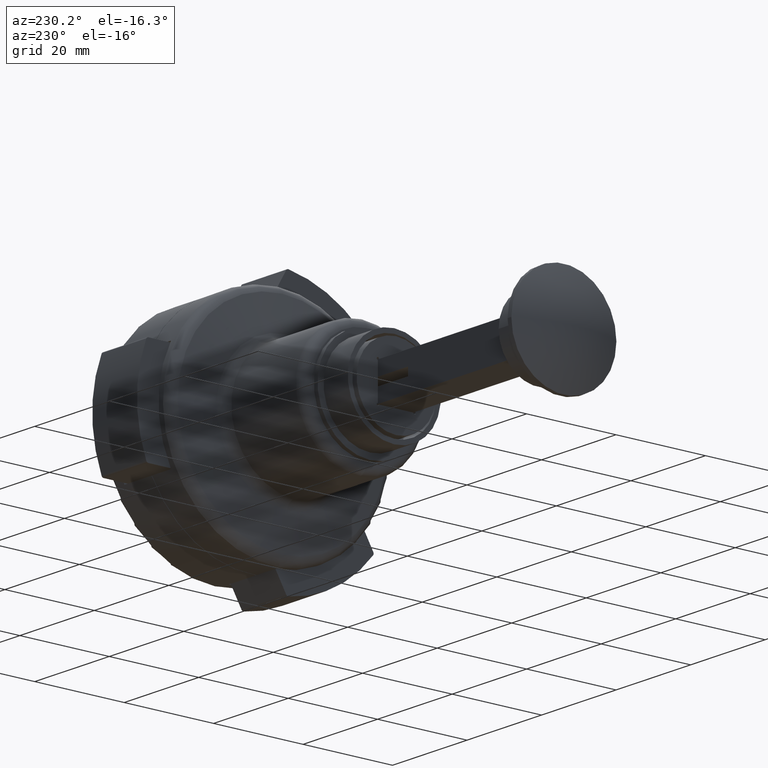
[diagram: clean part render]
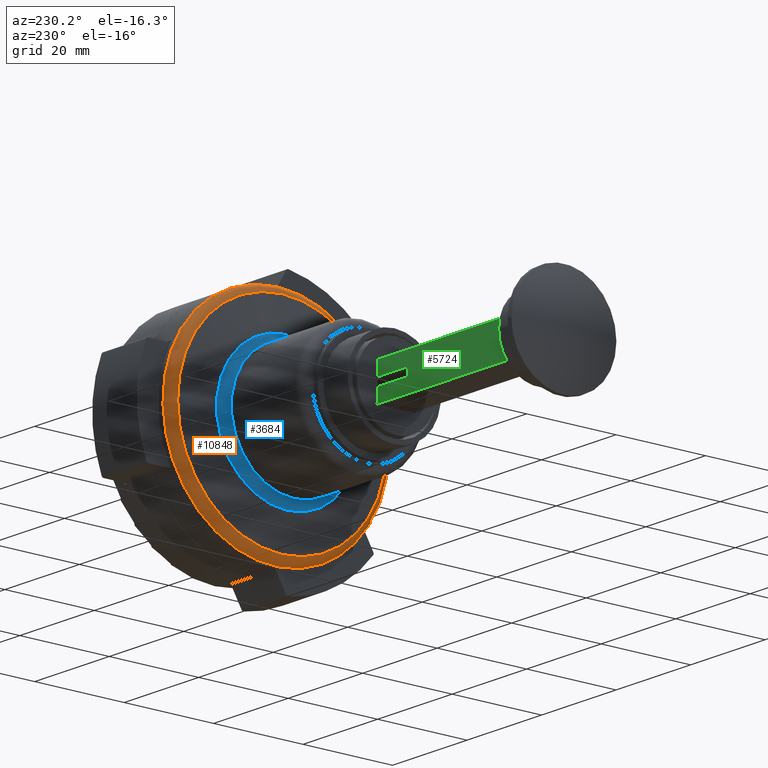
[diagram: same view with three faces highlighted in distinct colors, each labeled with its STEP entity id]
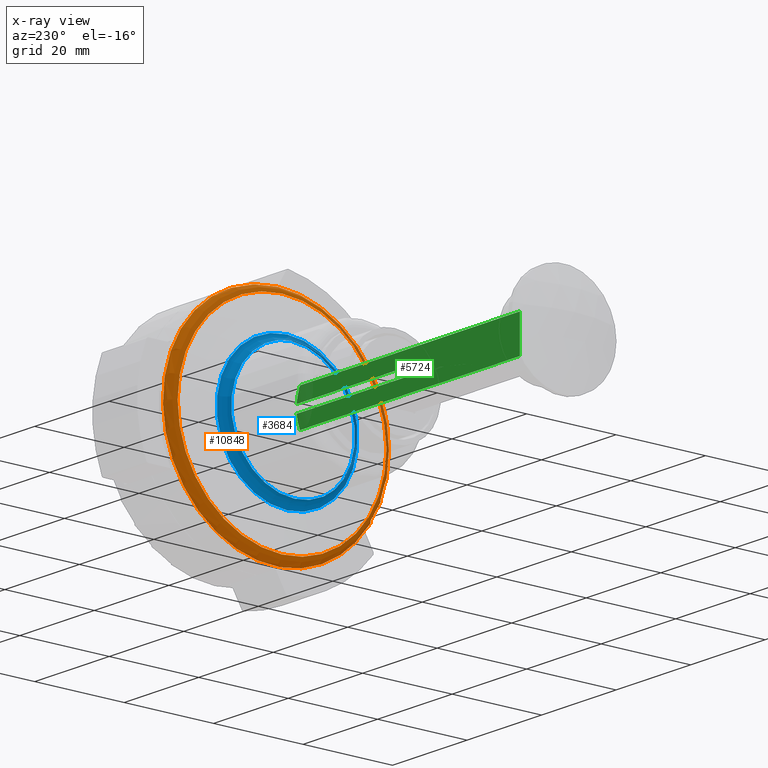
[diagram: x-ray of the same camera — body ghosted, the three highlighted faces saturated]
A machine part, auxiliary view with three faces highlighted in distinct colors.
The next image is the same camera in x-ray (body ghosted, the three faces saturated) — at least one of them is partly hidden behind the body in this view.
Their STEP definitions:

[orange] entity #10848 — the highlighted toroidal blend (fillet) surface has major radius 23 mm and minor (blend) radius 2 mm.
#45 = CIRCLE ( 'NONE', #7918, 25.00000000000015632 ) ;
#182 = ORIENTED_EDGE ( 'NONE', *, *, #4799, .F. ) ;
#861 = CARTESIAN_POINT ( 'NONE',  ( -25.00000000000015632, -9.374464004304871916E-30, -6.399836647923234700 ) ) ;
#1333 = DIRECTION ( 'NONE',  ( -1.000000000000000000, -4.057934392823881420E-31, 0.000000000000000000 ) ) ;
#2585 = EDGE_LOOP ( 'NONE', ( #182 ) ) ;
#2809 = AXIS2_PLACEMENT_3D ( 'NONE', #7335, #13039, #6083 ) ;
#2987 = DIRECTION ( 'NONE',  ( -1.000000000000000000, -4.057934392823880544E-31, -6.902532920683853297E-31 ) ) ;
#3422 = VERTEX_POINT ( 'NONE', #861 ) ;
#3764 = CARTESIAN_POINT ( 'NONE',  ( -8.011868568650901149E-29, 7.703719777548943412E-31, -6.399836647923234700 ) ) ;
#3804 = CIRCLE ( 'NONE', #2809, 23.34729635533399161 ) ;
#3945 = AXIS2_PLACEMENT_3D ( 'NONE', #14247, #10739, #2987 ) ;
#4227 = TOROIDAL_SURFACE ( 'NONE', #3945, 23.00000000000000000, 2.000000000000000888 ) ;
#4345 = EDGE_CURVE ( 'NONE', #3422, #3422, #45, .T. ) ;
#4799 = EDGE_CURVE ( 'NONE', #14304, #14304, #3804, .T. ) ;
#6083 = DIRECTION ( 'NONE',  ( -1.000000000000000000, -4.057934392823880544E-31, 0.000000000000000000 ) ) ;
#7335 = CARTESIAN_POINT ( 'NONE',  ( 0.000000000000000000, 0.000000000000000000, -8.369452153947658957 ) ) ;
#7424 = FACE_OUTER_BOUND ( 'NONE', #11920, .T. ) ;
#7918 = AXIS2_PLACEMENT_3D ( 'NONE', #3764, #11782, #1333 ) ;
#8150 = ORIENTED_EDGE ( 'NONE', *, *, #4345, .T. ) ;
#8880 = CARTESIAN_POINT ( 'NONE',  ( -23.34729635533399161, -9.474179685976143261E-30, -8.369452153947658957 ) ) ;
#10739 = DIRECTION ( 'NONE',  ( 6.902532920683853297E-31, 1.035592380457804115E-30, -1.000000000000000000 ) ) ;
#10848 = ADVANCED_FACE ( 'NONE', ( #12791, #7424 ), #4227, .T. ) ;
#11782 = DIRECTION ( 'NONE',  ( 6.902532920683853297E-31, 1.035592380457804115E-30, -1.000000000000000000 ) ) ;
#11920 = EDGE_LOOP ( 'NONE', ( #8150 ) ) ;
#12791 = FACE_OUTER_BOUND ( 'NONE', #2585, .T. ) ;
#13039 = DIRECTION ( 'NONE',  ( 6.902532920683853297E-31, 1.035592380457804115E-30, -1.000000000000000000 ) ) ;
#14247 = CARTESIAN_POINT ( 'NONE',  ( -8.011868568650901149E-29, 7.703719777548943412E-31, -6.399836647923234700 ) ) ;
#14304 = VERTEX_POINT ( 'NONE', #8880 ) ;

[blue] entity #3684 — the highlighted toroidal blend (fillet) surface has major radius 16.1 mm and minor (blend) radius 2 mm.
#580 = DIRECTION ( 'NONE',  ( -1.000000000000000000, -4.057934392823880544E-31, 0.000000000000000000 ) ) ;
#705 = ORIENTED_EDGE ( 'NONE', *, *, #3369, .F. ) ;
#727 = EDGE_LOOP ( 'NONE', ( #11047 ) ) ;
#1073 = DIRECTION ( 'NONE',  ( -1.000000000000000000, -4.057934392823881420E-31, -6.902532920683853297E-31 ) ) ;
#1413 = CARTESIAN_POINT ( 'NONE',  ( 0.000000000000000000, 0.000000000000000000, -9.708583756330172676 ) ) ;
#2653 = DIRECTION ( 'NONE',  ( 1.000000000000000000, 4.057934392823881420E-31, 0.000000000000000000 ) ) ;
#2709 = AXIS2_PLACEMENT_3D ( 'NONE', #1413, #5958, #2653 ) ;
#3213 = CARTESIAN_POINT ( 'NONE',  ( 15.75270364466625495, 6.392343789965329815E-30, -9.708583756330172676 ) ) ;
#3369 = EDGE_CURVE ( 'NONE', #5052, #5052, #8426, .T. ) ;
#3684 = ADVANCED_FACE ( 'NONE', ( #3968, #9996 ), #5726, .F. ) ;
#3968 = FACE_OUTER_BOUND ( 'NONE', #727, .T. ) ;
#4028 = DIRECTION ( 'NONE',  ( 6.902532920683853297E-31, 1.035592380457804115E-30, -1.000000000000000000 ) ) ;
#5052 = VERTEX_POINT ( 'NONE', #7670 ) ;
#5678 = VERTEX_POINT ( 'NONE', #3213 ) ;
#5726 = TOROIDAL_SURFACE ( 'NONE', #14590, 16.10000000000000142, 2.000000000000000000 ) ;
#5958 = DIRECTION ( 'NONE',  ( -6.902532920683853297E-31, -1.035592380457804115E-30, 1.000000000000000000 ) ) ;
#7670 = CARTESIAN_POINT ( 'NONE',  ( -14.10000000000009024, 5.063520194686812558E-30, -11.67819926235456940 ) ) ;
#7878 = DIRECTION ( 'NONE',  ( 6.902532920683853297E-31, 1.035592380457804115E-30, -1.000000000000000000 ) ) ;
#7940 = CARTESIAN_POINT ( 'NONE',  ( 0.000000000000000000, 1.078520768856852078E-29, -11.67819926235456940 ) ) ;
#8115 = CIRCLE ( 'NONE', #2709, 15.75270364466625495 ) ;
#8426 = CIRCLE ( 'NONE', #13367, 14.10000000000009024 ) ;
#8567 = EDGE_LOOP ( 'NONE', ( #705 ) ) ;
#9996 = FACE_OUTER_BOUND ( 'NONE', #8567, .T. ) ;
#10762 = EDGE_CURVE ( 'NONE', #5678, #5678, #8115, .T. ) ;
#11047 = ORIENTED_EDGE ( 'NONE', *, *, #10762, .F. ) ;
#13243 = CARTESIAN_POINT ( 'NONE',  ( 0.000000000000000000, 1.078520768856852078E-29, -11.67819926235456940 ) ) ;
#13367 = AXIS2_PLACEMENT_3D ( 'NONE', #13243, #4028, #580 ) ;
#14590 = AXIS2_PLACEMENT_3D ( 'NONE', #7940, #7878, #1073 ) ;

[green] entity #5724 — the highlighted planar face has unit normal (0, -1, 0).
#98 = CARTESIAN_POINT ( 'NONE',  ( -15.00000000000000000, 4.000000000000000888, -0.8750000000000001110 ) ) ;
#321 = CARTESIAN_POINT ( 'NONE',  ( 44.44032321602044533, 3.999999999999999112, 2.981996921138053036 ) ) ;
#687 = CARTESIAN_POINT ( 'NONE',  ( 45.00000000000000000, 3.999999999999999112, 4.000000000000001776 ) ) ;
#1153 = LINE ( 'NONE', #1433, #9148 ) ;
#1251 = EDGE_CURVE ( 'NONE', #6542, #8886, #4521, .T. ) ;
#1260 = DIRECTION ( 'NONE',  ( -0.000000000000000000, -0.000000000000000000, -1.000000000000000000 ) ) ;
#1433 = CARTESIAN_POINT ( 'NONE',  ( 45.00000000000000000, 3.999999999999999112, -3.999999999999999112 ) ) ;
#1587 = CARTESIAN_POINT ( 'NONE',  ( 44.94539141800778737, 4.000000000000030198, 0.8750000000000005551 ) ) ;
#1588 = ORIENTED_EDGE ( 'NONE', *, *, #3902, .F. ) ;
#1883 = CARTESIAN_POINT ( 'NONE',  ( 44.43978035802832949, 3.999999999999999112, -2.983355208092790534 ) ) ;
#1940 = CARTESIAN_POINT ( 'NONE',  ( 44.94539141800801474, 3.999999999999999112, -0.8750000000000995870 ) ) ;
#2668 = CARTESIAN_POINT ( 'NONE',  ( -15.00000000000000000, 4.000000000000001776, 4.000000000000001776 ) ) ;
#2906 = LINE ( 'NONE', #12591, #11625 ) ;
#2991 = DIRECTION ( 'NONE',  ( 0.000000000000000000, -1.000000000000000000, 0.000000000000000000 ) ) ;
#3040 = CARTESIAN_POINT ( 'NONE',  ( 44.94539141800778737, 4.000000000000030198, 0.8750000000000005551 ) ) ;
#3643 = VECTOR ( 'NONE', #5231, 1000.000000000000000 ) ;
#3849 = ORIENTED_EDGE ( 'NONE', *, *, #14660, .F. ) ;
#3902 = EDGE_CURVE ( 'NONE', #7027, #5974, #2906, .T. ) ;
#4015 = VECTOR ( 'NONE', #4225, 1000.000000000000000 ) ;
#4082 = ORIENTED_EDGE ( 'NONE', *, *, #13687, .T. ) ;
#4110 = CARTESIAN_POINT ( 'NONE',  ( 44.04341475304760678, 4.000000000000000000, -3.999999999999999112 ) ) ;
#4205 = CARTESIAN_POINT ( 'NONE',  ( -15.00000000000000000, 3.999999999999999112, -4.000000000000000888 ) ) ;
#4225 = DIRECTION ( 'NONE',  ( 1.000000000000000000, -0.000000000000000000, -0.000000000000000000 ) ) ;
#4415 = VECTOR ( 'NONE', #1260, 1000.000000000000000 ) ;
#4521 = LINE ( 'NONE', #9557, #3643 ) ;
#4830 = ORIENTED_EDGE ( 'NONE', *, *, #13568, .T. ) ;
#4891 = LINE ( 'NONE', #11046, #4015 ) ;
#5231 = DIRECTION ( 'NONE',  ( -0.000000000000000000, -0.000000000000000000, 1.000000000000000000 ) ) ;
#5381 = VERTEX_POINT ( 'NONE', #6309 ) ;
#5492 = ORIENTED_EDGE ( 'NONE', *, *, #7979, .F. ) ;
#5724 = ADVANCED_FACE ( 'NONE', ( #9458 ), #12152, .F. ) ;
#5974 = VERTEX_POINT ( 'NONE', #2668 ) ;
#6063 = ORIENTED_EDGE ( 'NONE', *, *, #7277, .F. ) ;
#6237 = DIRECTION ( 'NONE',  ( 1.000000000000000000, -0.000000000000000000, -0.000000000000000000 ) ) ;
#6309 = CARTESIAN_POINT ( 'NONE',  ( 44.04341475304760678, 4.000000000000000000, -3.999999999999999112 ) ) ;
#6398 = CARTESIAN_POINT ( 'NONE',  ( 44.75476316776835262, 3.999999999999999112, -1.942875093181795076 ) ) ;
#6531 = EDGE_LOOP ( 'NONE', ( #12056, #1588, #5492, #6063, #9669, #4082, #3849, #4830 ) ) ;
#6542 = VERTEX_POINT ( 'NONE', #8442 ) ;
#6546 = CARTESIAN_POINT ( 'NONE',  ( 44.87873634941627898, 3.999999999999999112, -1.415251060417864304 ) ) ;
#6640 = CARTESIAN_POINT ( 'NONE',  ( 15.00000000000000000, 4.000000000000000888, 0.8750000000000005551 ) ) ;
#6827 = DIRECTION ( 'NONE',  ( -1.000000000000000000, -0.000000000000000000, -0.000000000000000000 ) ) ;
#7027 = VERTEX_POINT ( 'NONE', #12417 ) ;
#7142 = CARTESIAN_POINT ( 'NONE',  ( 44.75593809106885601, 3.999999999999999112, 1.938556675108114247 ) ) ;
#7277 = EDGE_CURVE ( 'NONE', #8886, #9516, #14459, .T. ) ;
#7343 = CARTESIAN_POINT ( 'NONE',  ( 44.24904486352164668, 3.999999999999999112, 3.496311153586488363 ) ) ;
#7593 = DIRECTION ( 'NONE',  ( 0.000000000000000000, -0.000000000000000000, -1.000000000000000000 ) ) ;
#7979 = EDGE_CURVE ( 'NONE', #9516, #7027, #12892, .T. ) ;
#8442 = CARTESIAN_POINT ( 'NONE',  ( 15.00000000000000000, 4.000000000000000888, -0.8749999999999994449 ) ) ;
#8654 = DIRECTION ( 'NONE',  ( -1.000000000000000000, -0.000000000000000000, -0.000000000000000000 ) ) ;
#8886 = VERTEX_POINT ( 'NONE', #12357 ) ;
#9148 = VECTOR ( 'NONE', #8654, 1000.000000000000000 ) ;
#9458 = FACE_OUTER_BOUND ( 'NONE', #6531, .T. ) ;
#9512 = CARTESIAN_POINT ( 'NONE',  ( 44.04341475304761389, 3.999999999999999112, 4.000000000000001776 ) ) ;
#9516 = VERTEX_POINT ( 'NONE', #3040 ) ;
#9557 = CARTESIAN_POINT ( 'NONE',  ( 15.00000000000000000, 4.000000000000000888, 0.8750000000000005551 ) ) ;
#9669 = ORIENTED_EDGE ( 'NONE', *, *, #1251, .F. ) ;
#9868 = CARTESIAN_POINT ( 'NONE',  ( 44.24904763687256093, 4.000000000000000000, -3.496304360291883739 ) ) ;
#9877 = VERTEX_POINT ( 'NONE', #4205 ) ;
#10090 = B_SPLINE_CURVE_WITH_KNOTS ( 'NONE', 3,
 ( #4110, #9868, #1883, #6398, #6546, #1940 ),
 .UNSPECIFIED., .F., .F.,
 ( 4, 2, 4 ),
 ( 0.004405074066177484642, 0.006035893612346614895, 0.007666713158515744281 ),
 .UNSPECIFIED. ) ;
#10183 = EDGE_CURVE ( 'NONE', #5974, #9877, #10828, .T. ) ;
#10828 = LINE ( 'NONE', #98, #4415 ) ;
#11046 = CARTESIAN_POINT ( 'NONE',  ( 15.00000000000000000, 4.000000000000000888, -0.8749999999999994449 ) ) ;
#11625 = VECTOR ( 'NONE', #6827, 1000.000000000000000 ) ;
#11686 = CARTESIAN_POINT ( 'NONE',  ( 44.87921994223834332, 4.000000000000000000, 1.411331455495215215 ) ) ;
#12056 = ORIENTED_EDGE ( 'NONE', *, *, #10183, .F. ) ;
#12147 = VECTOR ( 'NONE', #6237, 1000.000000000000000 ) ;
#12152 = PLANE ( 'NONE',  #14264 ) ;
#12357 = CARTESIAN_POINT ( 'NONE',  ( 15.00000000000000000, 4.000000000000000888, 0.8750000000000005551 ) ) ;
#12417 = CARTESIAN_POINT ( 'NONE',  ( 44.04341475304761389, 3.999999999999999112, 4.000000000000001776 ) ) ;
#12480 = CARTESIAN_POINT ( 'NONE',  ( 44.94539141800801474, 3.999999999999999112, -0.8750000000000995870 ) ) ;
#12591 = CARTESIAN_POINT ( 'NONE',  ( 45.00000000000000000, 3.999999999999999112, 4.000000000000001776 ) ) ;
#12892 = B_SPLINE_CURVE_WITH_KNOTS ( 'NONE', 3,
 ( #1587, #11686, #7142, #321, #7343, #9512 ),
 .UNSPECIFIED., .F., .F.,
 ( 4, 2, 4 ),
 ( 0.009424710491112490290, 0.01106730895433996782, 0.01270990741756744535 ),
 .UNSPECIFIED. ) ;
#13464 = VERTEX_POINT ( 'NONE', #12480 ) ;
#13568 = EDGE_CURVE ( 'NONE', #5381, #9877, #1153, .T. ) ;
#13687 = EDGE_CURVE ( 'NONE', #6542, #13464, #4891, .T. ) ;
#14264 = AXIS2_PLACEMENT_3D ( 'NONE', #687, #2991, #7593 ) ;
#14459 = LINE ( 'NONE', #6640, #12147 ) ;
#14660 = EDGE_CURVE ( 'NONE', #5381, #13464, #10090, .T. ) ;